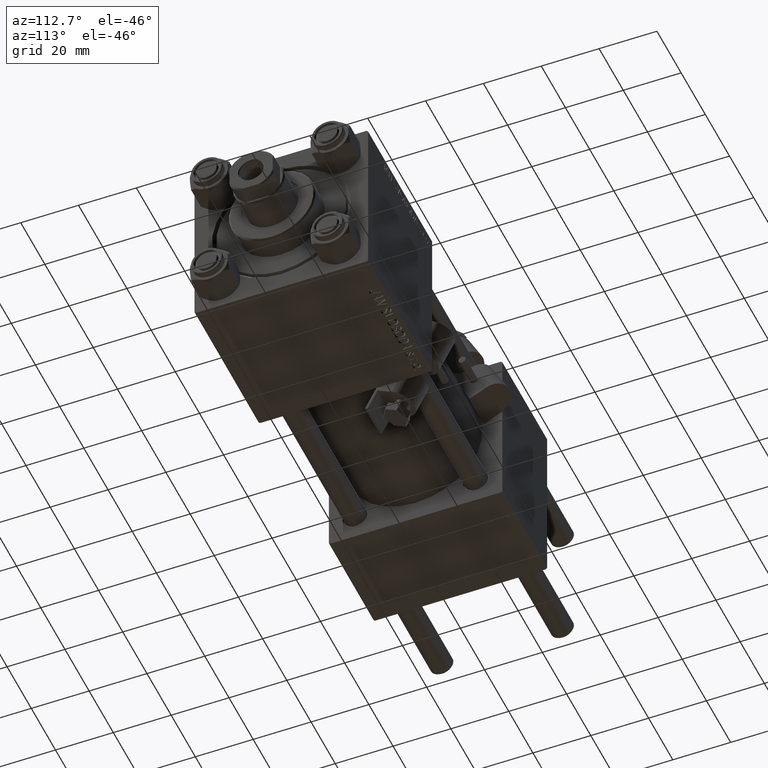
[diagram: clean part render]
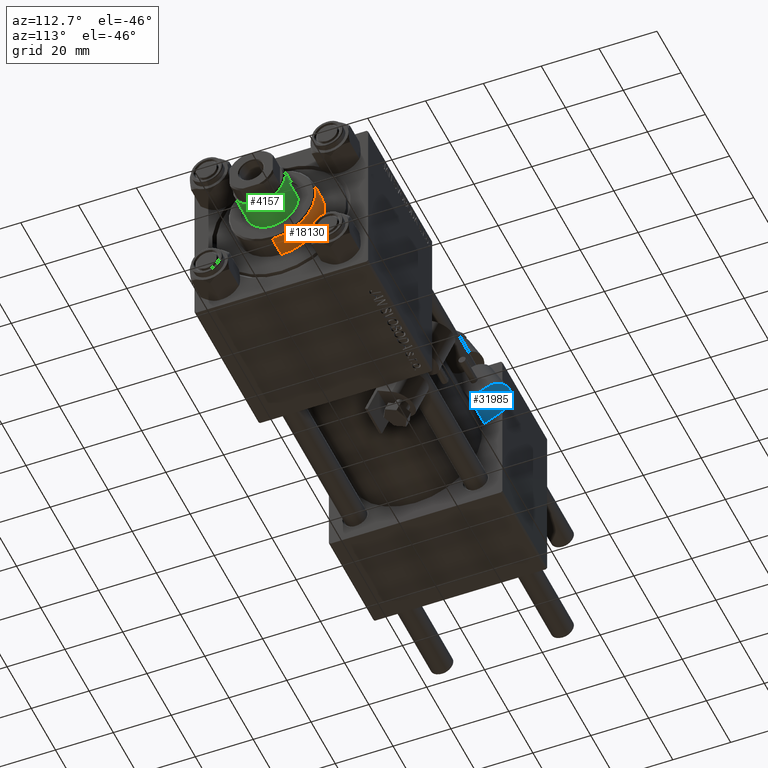
[diagram: same view with three faces highlighted in distinct colors, each labeled with its STEP entity id]
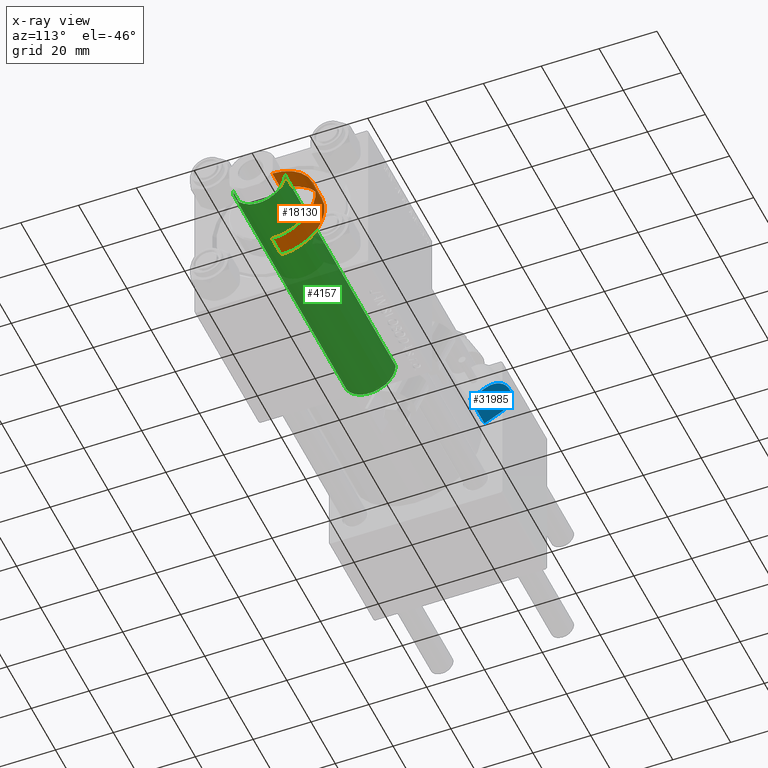
[diagram: x-ray of the same camera — body ghosted, the three highlighted faces saturated]
A machine part, auxiliary view with three faces highlighted in distinct colors.
The next image is the same camera in x-ray (body ghosted, the three faces saturated) — at least one of them is partly hidden behind the body in this view.
Their STEP definitions:

[orange] entity #18130 — the highlighted cylindrical surface (partial cylindrical patch) has radius 15 mm, axis along (-1, -0, 0).
#2642 = ORIENTED_EDGE ( 'NONE', *, *, #16412, .T. ) ;
#3405 = VERTEX_POINT ( 'NONE', #28555 ) ;
#5445 = DIRECTION ( 'NONE',  ( -0.000000000000000000, -0.000000000000000000, -1.000000000000000000 ) ) ;
#7499 = AXIS2_PLACEMENT_3D ( 'NONE', #17544, #5445, #9058 ) ;
#7962 = EDGE_CURVE ( 'NONE', #3405, #40518, #7989, .T. ) ;
#7989 = CIRCLE ( 'NONE', #23623, 15.00000000000000000 ) ;
#8877 = CARTESIAN_POINT ( 'NONE',  ( -15.00000000000000000, 0.000000000000000000, 28.69999999999999929 ) ) ;
#9058 = DIRECTION ( 'NONE',  ( -1.000000000000000000, 0.000000000000000000, 0.000000000000000000 ) ) ;
#9863 = CIRCLE ( 'NONE', #17295, 15.00000000000000000 ) ;
#11546 = VECTOR ( 'NONE', #11776, 1000.000000000000000 ) ;
#11776 = DIRECTION ( 'NONE',  ( -0.000000000000000000, -0.000000000000000000, -1.000000000000000000 ) ) ;
#14947 = EDGE_CURVE ( 'NONE', #35701, #42977, #9863, .T. ) ;
#15391 = LINE ( 'NONE', #47307, #11546 ) ;
#16175 = ORIENTED_EDGE ( 'NONE', *, *, #14947, .T. ) ;
#16412 = EDGE_CURVE ( 'NONE', #40518, #35701, #15391, .T. ) ;
#16833 = CARTESIAN_POINT ( 'NONE',  ( -15.00000000000000000, 0.000000000000000000, 36.69999999999999574 ) ) ;
#17295 = AXIS2_PLACEMENT_3D ( 'NONE', #33974, #33726, #45833 ) ;
#17544 = CARTESIAN_POINT ( 'NONE',  ( 0.000000000000000000, 0.000000000000000000, 36.69999999999999574 ) ) ;
#18130 = ADVANCED_FACE ( 'NONE', ( #37104 ), #20904, .T. ) ;
#19361 = DIRECTION ( 'NONE',  ( 0.000000000000000000, 0.000000000000000000, -1.000000000000000000 ) ) ;
#19888 = CARTESIAN_POINT ( 'NONE',  ( 0.000000000000000000, 0.000000000000000000, 36.20000000000000284 ) ) ;
#20904 = CYLINDRICAL_SURFACE ( 'NONE', #7499, 15.00000000000000000 ) ;
#23577 = EDGE_CURVE ( 'NONE', #3405, #42977, #31529, .T. ) ;
#23623 = AXIS2_PLACEMENT_3D ( 'NONE', #19888, #19361, #32228 ) ;
#23744 = ORIENTED_EDGE ( 'NONE', *, *, #7962, .T. ) ;
#26479 = EDGE_LOOP ( 'NONE', ( #23744, #2642, #16175, #45573 ) ) ;
#28555 = CARTESIAN_POINT ( 'NONE',  ( -15.00000000000000000, 0.000000000000000000, 36.20000000000000284 ) ) ;
#29122 = VECTOR ( 'NONE', #32530, 1000.000000000000000 ) ;
#31529 = LINE ( 'NONE', #16833, #29122 ) ;
#32073 = CARTESIAN_POINT ( 'NONE',  ( 15.00000000000000000, 1.836970198721029589E-15, 36.20000000000000284 ) ) ;
#32228 = DIRECTION ( 'NONE',  ( 1.000000000000000000, 0.000000000000000000, 0.000000000000000000 ) ) ;
#32530 = DIRECTION ( 'NONE',  ( -0.000000000000000000, -0.000000000000000000, -1.000000000000000000 ) ) ;
#33726 = DIRECTION ( 'NONE',  ( 0.000000000000000000, 0.000000000000000000, 1.000000000000000000 ) ) ;
#33974 = CARTESIAN_POINT ( 'NONE',  ( 0.000000000000000000, 0.000000000000000000, 28.69999999999999929 ) ) ;
#35701 = VERTEX_POINT ( 'NONE', #42284 ) ;
#37104 = FACE_OUTER_BOUND ( 'NONE', #26479, .T. ) ;
#40518 = VERTEX_POINT ( 'NONE', #32073 ) ;
#42284 = CARTESIAN_POINT ( 'NONE',  ( 15.00000000000000000, 1.836970198721029589E-15, 28.69999999999999929 ) ) ;
#42977 = VERTEX_POINT ( 'NONE', #8877 ) ;
#45573 = ORIENTED_EDGE ( 'NONE', *, *, #23577, .F. ) ;
#45833 = DIRECTION ( 'NONE',  ( 1.000000000000000000, 0.000000000000000000, 0.000000000000000000 ) ) ;
#47307 = CARTESIAN_POINT ( 'NONE',  ( 15.00000000000000000, 1.836970198721029589E-15, 36.69999999999999574 ) ) ;

[blue] entity #31985 — the highlighted planar face has unit normal (-0, 0.4495, -0.8933).
#1964 = CARTESIAN_POINT ( 'NONE',  ( 30.23999999999999844, 6.500000000000000000, -5.999999999999999112 ) ) ;
#2390 = ORIENTED_EDGE ( 'NONE', *, *, #2486, .T. ) ;
#2486 = EDGE_CURVE ( 'NONE', #40740, #50648, #25432, .T. ) ;
#5591 = EDGE_CURVE ( 'NONE', #45205, #40740, #16880, .T. ) ;
#6452 = CARTESIAN_POINT ( 'NONE',  ( 30.23999999999999844, 6.500000000000000000, 2.255140518769849223E-14 ) ) ;
#6986 = DIRECTION ( 'NONE',  ( 0.000000000000000000, 0.000000000000000000, -1.000000000000000000 ) ) ;
#7799 = CARTESIAN_POINT ( 'NONE',  ( 30.23999999999999844, 0.000000000000000000, 6.000000000000005329 ) ) ;
#11999 = VECTOR ( 'NONE', #29227, 1000.000000000000000 ) ;
#14071 = DIRECTION ( 'NONE',  ( -0.000000000000000000, 1.000000000000000000, 1.334402673828313339E-16 ) ) ;
#14437 = AXIS2_PLACEMENT_3D ( 'NONE', #30438, #46145, #6986 ) ;
#14727 = FACE_OUTER_BOUND ( 'NONE', #28492, .T. ) ;
#16880 = LINE ( 'NONE', #44932, #11999 ) ;
#19435 = VECTOR ( 'NONE', #40879, 1000.000000000000000 ) ;
#19980 = CARTESIAN_POINT ( 'NONE',  ( 30.23999999999999844, 6.500000000000000000, -5.999999999999980460 ) ) ;
#22927 = DIRECTION ( 'NONE',  ( 1.000000000000000000, 0.000000000000000000, 0.000000000000000000 ) ) ;
#22982 = ORIENTED_EDGE ( 'NONE', *, *, #34744, .T. ) ;
#24287 = CARTESIAN_POINT ( 'NONE',  ( 30.23999999999999844, 6.499999999999999112, 6.000000000000006217 ) ) ;
#25143 = VECTOR ( 'NONE', #14071, 1000.000000000000000 ) ;
#25230 = ORIENTED_EDGE ( 'NONE', *, *, #27766, .T. ) ;
#25429 = VERTEX_POINT ( 'NONE', #19980 ) ;
#25432 = LINE ( 'NONE', #49870, #19435 ) ;
#25567 = PLANE ( 'NONE',  #14437 ) ;
#27766 = EDGE_CURVE ( 'NONE', #50648, #25429, #37235, .T. ) ;
#28492 = EDGE_LOOP ( 'NONE', ( #25230, #22982, #37906, #2390 ) ) ;
#29227 = DIRECTION ( 'NONE',  ( 0.000000000000000000, -1.000000000000000000, -1.334402673828313339E-16 ) ) ;
#30396 = DIRECTION ( 'NONE',  ( 0.000000000000000000, 0.000000000000000000, -1.000000000000000000 ) ) ;
#30438 = CARTESIAN_POINT ( 'NONE',  ( 30.23999999999999844, 6.500000000000000000, 2.255140518769849223E-14 ) ) ;
#31985 = ADVANCED_FACE ( 'NONE', ( #14727 ), #25567, .T. ) ;
#34744 = EDGE_CURVE ( 'NONE', #25429, #45205, #46640, .T. ) ;
#37235 = LINE ( 'NONE', #1964, #25143 ) ;
#37906 = ORIENTED_EDGE ( 'NONE', *, *, #5591, .T. ) ;
#40740 = VERTEX_POINT ( 'NONE', #7799 ) ;
#40879 = DIRECTION ( 'NONE',  ( 0.000000000000000000, 0.000000000000000000, -1.000000000000000000 ) ) ;
#44932 = CARTESIAN_POINT ( 'NONE',  ( 30.23999999999999844, 6.499999999999999112, 6.000000000000006217 ) ) ;
#45205 = VERTEX_POINT ( 'NONE', #24287 ) ;
#45797 = AXIS2_PLACEMENT_3D ( 'NONE', #6452, #22927, #30396 ) ;
#46145 = DIRECTION ( 'NONE',  ( 1.000000000000000000, 0.000000000000000000, 0.000000000000000000 ) ) ;
#46640 = CIRCLE ( 'NONE', #45797, 6.000000000000002665 ) ;
#48763 = CARTESIAN_POINT ( 'NONE',  ( 30.23999999999999844, 0.000000000000000000, -6.000000000000000000 ) ) ;
#49870 = CARTESIAN_POINT ( 'NONE',  ( 30.23999999999999844, 0.000000000000000000, 6.000000000000005329 ) ) ;
#50648 = VERTEX_POINT ( 'NONE', #48763 ) ;

[green] entity #4157 — the highlighted cylindrical surface (edge-blend (fillet) strip) has radius 9 mm, axis along (-1, 0, 0).
#311 = ORIENTED_EDGE ( 'NONE', *, *, #43219, .T. ) ;
#772 = VECTOR ( 'NONE', #3442, 1000.000000000000000 ) ;
#1577 = AXIS2_PLACEMENT_3D ( 'NONE', #50038, #4198, #4706 ) ;
#1951 = VERTEX_POINT ( 'NONE', #30750 ) ;
#2018 = CIRCLE ( 'NONE', #18447, 9.000000000000000000 ) ;
#2845 = CARTESIAN_POINT ( 'NONE',  ( 0.000000000000000000, 0.000000000000000000, 129.5000000000000000 ) ) ;
#3442 = DIRECTION ( 'NONE',  ( -0.000000000000000000, -0.000000000000000000, -1.000000000000000000 ) ) ;
#4157 = ADVANCED_FACE ( 'NONE', ( #14936 ), #30638, .T. ) ;
#4198 = DIRECTION ( 'NONE',  ( 0.000000000000000000, 0.000000000000000000, 1.000000000000000000 ) ) ;
#4315 = CARTESIAN_POINT ( 'NONE',  ( 9.000000000000000000, 1.102182119232617714E-15, 38.00000000000000000 ) ) ;
#4706 = DIRECTION ( 'NONE',  ( 1.000000000000000000, 0.000000000000000000, 0.000000000000000000 ) ) ;
#14709 = DIRECTION ( 'NONE',  ( -0.000000000000000000, -0.000000000000000000, -1.000000000000000000 ) ) ;
#14936 = FACE_OUTER_BOUND ( 'NONE', #25932, .T. ) ;
#15444 = DIRECTION ( 'NONE',  ( -1.000000000000000000, 0.000000000000000000, 0.000000000000000000 ) ) ;
#15534 = CARTESIAN_POINT ( 'NONE',  ( 9.000000000000000000, 1.102182119232617714E-15, 130.0000000000000000 ) ) ;
#18030 = VERTEX_POINT ( 'NONE', #38500 ) ;
#18447 = AXIS2_PLACEMENT_3D ( 'NONE', #2845, #38370, #25346 ) ;
#19329 = LINE ( 'NONE', #46126, #25071 ) ;
#24824 = EDGE_CURVE ( 'NONE', #45822, #18030, #2018, .T. ) ;
#25071 = VECTOR ( 'NONE', #14709, 1000.000000000000000 ) ;
#25346 = DIRECTION ( 'NONE',  ( 1.000000000000000000, 0.000000000000000000, 0.000000000000000000 ) ) ;
#25932 = EDGE_LOOP ( 'NONE', ( #42160, #30746, #311, #41838 ) ) ;
#27539 = DIRECTION ( 'NONE',  ( -0.000000000000000000, -0.000000000000000000, -1.000000000000000000 ) ) ;
#28997 = CARTESIAN_POINT ( 'NONE',  ( -9.000000000000000000, 0.000000000000000000, 129.5000000000000000 ) ) ;
#29428 = EDGE_CURVE ( 'NONE', #45822, #1951, #19329, .T. ) ;
#30638 = CYLINDRICAL_SURFACE ( 'NONE', #31004, 9.000000000000000000 ) ;
#30746 = ORIENTED_EDGE ( 'NONE', *, *, #40739, .T. ) ;
#30750 = CARTESIAN_POINT ( 'NONE',  ( -9.000000000000000000, 0.000000000000000000, 38.00000000000000000 ) ) ;
#31004 = AXIS2_PLACEMENT_3D ( 'NONE', #46598, #27539, #15444 ) ;
#34829 = LINE ( 'NONE', #15534, #772 ) ;
#37734 = CIRCLE ( 'NONE', #1577, 9.000000000000000000 ) ;
#38370 = DIRECTION ( 'NONE',  ( 0.000000000000000000, 0.000000000000000000, -1.000000000000000000 ) ) ;
#38500 = CARTESIAN_POINT ( 'NONE',  ( 9.000000000000000000, 1.102182119232617714E-15, 129.5000000000000000 ) ) ;
#40739 = EDGE_CURVE ( 'NONE', #18030, #41775, #34829, .T. ) ;
#41775 = VERTEX_POINT ( 'NONE', #4315 ) ;
#41838 = ORIENTED_EDGE ( 'NONE', *, *, #29428, .F. ) ;
#42160 = ORIENTED_EDGE ( 'NONE', *, *, #24824, .T. ) ;
#43219 = EDGE_CURVE ( 'NONE', #41775, #1951, #37734, .T. ) ;
#45822 = VERTEX_POINT ( 'NONE', #28997 ) ;
#46126 = CARTESIAN_POINT ( 'NONE',  ( -9.000000000000000000, 0.000000000000000000, 130.0000000000000000 ) ) ;
#46598 = CARTESIAN_POINT ( 'NONE',  ( 0.000000000000000000, 0.000000000000000000, 130.0000000000000000 ) ) ;
#50038 = CARTESIAN_POINT ( 'NONE',  ( 0.000000000000000000, 0.000000000000000000, 38.00000000000000000 ) ) ;